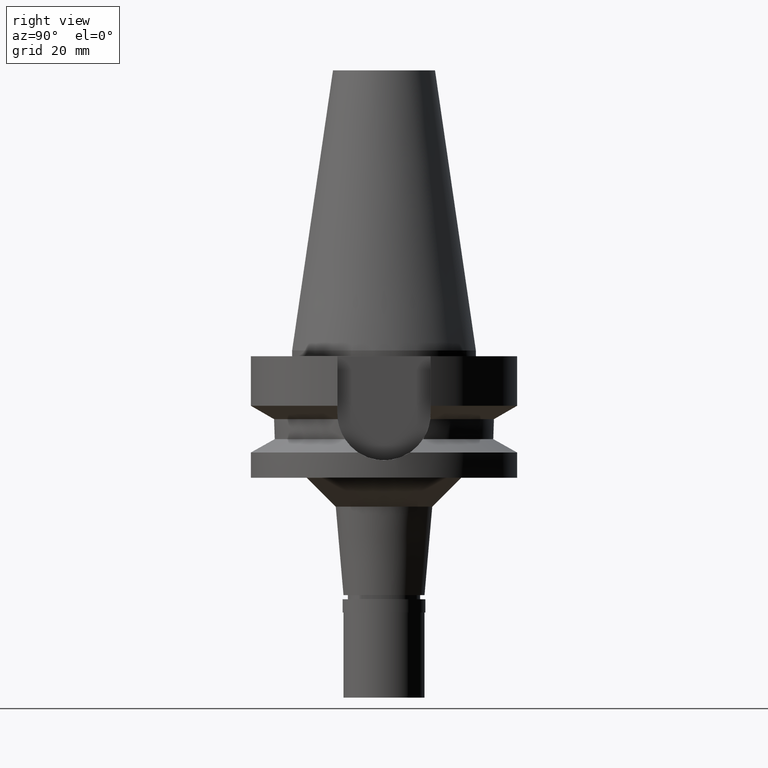
[diagram: clean part render]
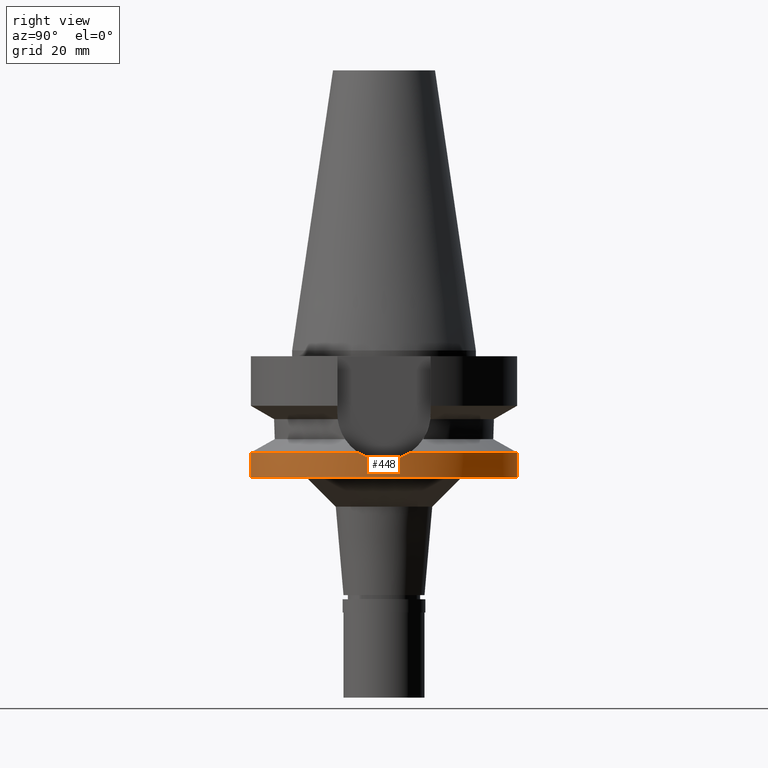
[diagram: same view with one face highlighted and labeled with its STEP entity id]
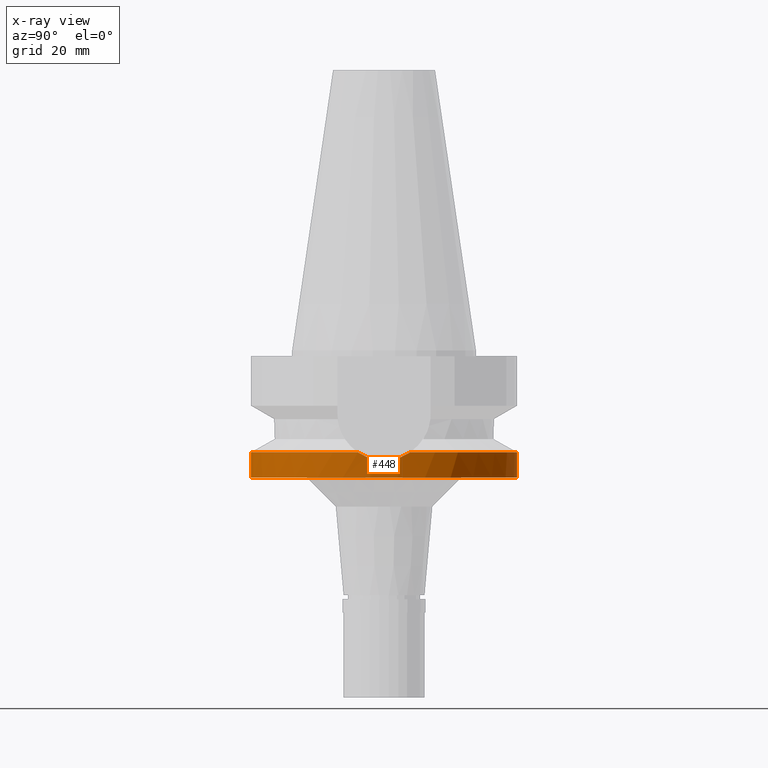
[diagram: x-ray of the same camera — body ghosted, the highlighted face saturated]
A machine part, right view. The second image highlights one B-rep face of the part: STEP entity #448.
The next image is the same camera in x-ray: the body ghosted, the highlighted face saturated — about 0% of this face is hidden behind the body in this view.
In plain terms, the highlighted cylindrical surface (partial cylindrical patch) has radius 23 mm, axis along (0, 0, -1).
Its self-contained STEP definition (entity closure, byte-faithful):
#115 = CARTESIAN_POINT ( 'NONE',  ( 0.0000000000000000000, 1.022848384030000006E-14, -17.63279163029000074 ) ) ;
#136 = DIRECTION ( 'NONE',  ( 0.0000000000000000000, 0.0000000000000000000, -1.000000000000000000 ) ) ;
#185 = CARTESIAN_POINT ( 'NONE',  ( 22.96071076208665573, 1.352603942152996508, -18.88798258446226797 ) ) ;
#204 = CARTESIAN_POINT ( 'NONE',  ( 22.88699429150508990, 2.275833945426211091, -18.67160857846149113 ) ) ;
#217 = B_SPLINE_CURVE_WITH_KNOTS ( 'NONE', 3,
 ( #2483, #609, #2469, #185, #389, #1312, #404, #2262, #2277, #204, #2050, #2958, #1345, #2921, #2413 ),
 .UNSPECIFIED., .F., .F.,
 ( 4, 2, 2, 1, 1, 1, 2, 2, 4 ),
 ( 0.0000000000000000000, 0.2499999999999888423, 0.3749999999999834022, 0.4374999999999807931, 0.4687499999999799050, 0.4843749999999794054, 0.4921874999999796274, 0.4999999999999799050, 1.000000000000000000 ),
 .UNSPECIFIED. ) ;
#238 = CARTESIAN_POINT ( 'NONE',  ( 22.55786346208000026, -4.488072640470000430, -17.63279163029000074 ) ) ;
#245 = LINE ( 'NONE', #716, #2690 ) ;
#262 = EDGE_CURVE ( 'NONE', #2947, #2054, #1557, .T. ) ;
#289 = VERTEX_POINT ( 'NONE', #978 ) ;
#291 = CARTESIAN_POINT ( 'NONE',  ( 22.88094006936556468, -2.335937757597561504, -18.65363902239958449 ) ) ;
#305 = CIRCLE ( 'NONE', #1955, 23.00000000000000000 ) ;
#346 = DIRECTION ( 'NONE',  ( 0.0000000000000000000, 0.0000000000000000000, -1.000000000000000000 ) ) ;
#379 = EDGE_CURVE ( 'NONE', #2899, #2512, #305, .T. ) ;
#389 = CARTESIAN_POINT ( 'NONE',  ( 22.94843267720125368, 1.547385716241232334, -18.85239223960121890 ) ) ;
#404 = CARTESIAN_POINT ( 'NONE',  ( 22.91436099164421591, 1.985013697799099974, -18.75255439337564312 ) ) ;
#428 = ORIENTED_EDGE ( 'NONE', *, *, #917, .F. ) ;
#448 = ADVANCED_FACE ( 'NONE', ( #1489 ), #767, .T. ) ;
#459 = CARTESIAN_POINT ( 'NONE',  ( 0.0000000000000000000, 23.00000000000000000, -17.63279163029000074 ) ) ;
#484 = CARTESIAN_POINT ( 'NONE',  ( 22.87778854850152044, -2.366576874364148875, -18.64427962363820157 ) ) ;
#603 = ORIENTED_EDGE ( 'NONE', *, *, #379, .T. ) ;
#609 = CARTESIAN_POINT ( 'NONE',  ( 23.00000063371999559, 0.3818371250552912710, -18.99999999999999645 ) ) ;
#617 = CARTESIAN_POINT ( 'NONE',  ( 0.0000000000000000000, -23.00000000000000000, -22.00000000000000000 ) ) ;
#658 = DIRECTION ( 'NONE',  ( 0.9807766722643714852, -0.1951335930638943839, 0.0000000000000000000 ) ) ;
#668 = LINE ( 'NONE', #882, #1219 ) ;
#716 = CARTESIAN_POINT ( 'NONE',  ( 0.0000000000000000000, -23.00000000000000000, -17.63279163029000074 ) ) ;
#748 = AXIS2_PLACEMENT_3D ( 'NONE', #2953, #2082, #658 ) ;
#767 = CYLINDRICAL_SURFACE ( 'NONE', #1816, 23.00000000000000000 ) ;
#882 = CARTESIAN_POINT ( 'NONE',  ( 0.0000000000000000000, 23.00000000000000000, -17.63279163029000074 ) ) ;
#917 = EDGE_CURVE ( 'NONE', #2054, #2512, #217, .T. ) ;
#922 = VERTEX_POINT ( 'NONE', #1944 ) ;
#927 = DIRECTION ( 'NONE',  ( 0.0000000000000000000, -2.603192430893000129E-14, -1.000000000000000000 ) ) ;
#970 = CARTESIAN_POINT ( 'NONE',  ( 22.84972471004990524, -2.625489052280167268, -18.56078264747250728 ) ) ;
#978 = CARTESIAN_POINT ( 'NONE',  ( 0.0000000000000000000, 23.00000000000000000, -22.00000000000000000 ) ) ;
#1035 = DIRECTION ( 'NONE',  ( 0.0000000000000000000, -1.000000000000000000, 0.0000000000000000000 ) ) ;
#1069 = ORIENTED_EDGE ( 'NONE', *, *, #1258, .T. ) ;
#1147 = CARTESIAN_POINT ( 'NONE',  ( 22.55786346208000026, -4.488072640470000430, -17.63279163029000074 ) ) ;
#1178 = CARTESIAN_POINT ( 'NONE',  ( 22.87999223066117693, -2.345192716997038573, -18.65082438113955376 ) ) ;
#1219 = VECTOR ( 'NONE', #927, 1000.000000000000000 ) ;
#1256 = DIRECTION ( 'NONE',  ( 0.0000000000000000000, 1.000000000000000000, 0.0000000000000000000 ) ) ;
#1258 = EDGE_CURVE ( 'NONE', #922, #2467, #245, .T. ) ;
#1264 = ORIENTED_EDGE ( 'NONE', *, *, #262, .F. ) ;
#1312 = CARTESIAN_POINT ( 'NONE',  ( 22.92633212440749446, 1.839198316140600475, -18.78771497119791078 ) ) ;
#1345 = CARTESIAN_POINT ( 'NONE',  ( 22.81283258117790780, 3.006578349707154985, -18.45139701124243103 ) ) ;
#1386 = CARTESIAN_POINT ( 'NONE',  ( 23.00000063371999914, 1.443017015379000089E-13, -19.00000207062000257 ) ) ;
#1432 = EDGE_CURVE ( 'NONE', #2899, #289, #668, .T. ) ;
#1489 = FACE_OUTER_BOUND ( 'NONE', #1683, .T. ) ;
#1501 = DIRECTION ( 'NONE',  ( 0.0000000000000000000, -1.000000000000000000, 0.0000000000000000000 ) ) ;
#1557 = B_SPLINE_CURVE_WITH_KNOTS ( 'NONE', 3,
 ( #238, #1678, #2354, #1661, #1847, #1642, #970, #2137, #2541, #484, #1178, #291, #2813, #2577, #1386 ),
 .UNSPECIFIED., .F., .F.,
 ( 4, 2, 2, 1, 1, 1, 2, 2, 4 ),
 ( 0.0000000000000000000, 0.2500000000000007772, 0.3750000000000010547, 0.4375000000000004996, 0.4687500000000000000, 0.4843750000000001110, 0.4921875000000005551, 0.5000000000000008882, 1.000000000000000000 ),
 .UNSPECIFIED. ) ;
#1642 = CARTESIAN_POINT ( 'NONE',  ( 22.83400210089637028, -2.757209696335472859, -18.51367956030372142 ) ) ;
#1661 = CARTESIAN_POINT ( 'NONE',  ( 22.77613773201835912, -3.202598962406387084, -18.33823203040621053 ) ) ;
#1678 = CARTESIAN_POINT ( 'NONE',  ( 22.63131207853134441, -4.118906632237657739, -17.88071853763582908 ) ) ;
#1683 = EDGE_LOOP ( 'NONE', ( #2346, #1069, #2978, #2559, #603, #428, #1264 ) ) ;
#1816 = AXIS2_PLACEMENT_3D ( 'NONE', #2643, #346, #1035 ) ;
#1847 = CARTESIAN_POINT ( 'NONE',  ( 22.80073832535611089, -3.022754175988392689, -18.41332850634591622 ) ) ;
#1944 = CARTESIAN_POINT ( 'NONE',  ( 0.0000000000000000000, -23.00000000000000000, -17.63279163029000074 ) ) ;
#1954 = CARTESIAN_POINT ( 'NONE',  ( 22.55786346208000026, 4.488072640470000430, -17.63279163029000074 ) ) ;
#1955 = AXIS2_PLACEMENT_3D ( 'NONE', #115, #136, #1256 ) ;
#2050 = CARTESIAN_POINT ( 'NONE',  ( 22.88457704354327049, 2.300027115002791334, -18.66443675561451698 ) ) ;
#2054 = VERTEX_POINT ( 'NONE', #2792 ) ;
#2061 = CIRCLE ( 'NONE', #748, 23.00000000000001066 ) ;
#2077 = CIRCLE ( 'NONE', #2875, 23.00000000000000000 ) ;
#2082 = DIRECTION ( 'NONE',  ( 0.0000000000000000000, 0.0000000000000000000, -1.000000000000000000 ) ) ;
#2137 = CARTESIAN_POINT ( 'NONE',  ( 22.86647651648333479, -2.473921394389271278, -18.61066494075172528 ) ) ;
#2225 = EDGE_CURVE ( 'NONE', #2467, #289, #2077, .T. ) ;
#2262 = CARTESIAN_POINT ( 'NONE',  ( 22.89878317144584585, 2.154771474957501542, -18.70653894765700542 ) ) ;
#2277 = CARTESIAN_POINT ( 'NONE',  ( 22.89059138668635640, 2.239534525010190347, -18.68227636467218034 ) ) ;
#2346 = ORIENTED_EDGE ( 'NONE', *, *, #2793, .T. ) ;
#2354 = CARTESIAN_POINT ( 'NONE',  ( 22.69506172307234237, -3.747764842162717880, -18.08562956468145444 ) ) ;
#2413 = CARTESIAN_POINT ( 'NONE',  ( 22.55786346208000026, 4.488072640470000430, -17.63279163029000074 ) ) ;
#2467 = VERTEX_POINT ( 'NONE', #617 ) ;
#2469 = CARTESIAN_POINT ( 'NONE',  ( 22.99017816581165974, 0.7692921462012740630, -18.97278688087933674 ) ) ;
#2483 = CARTESIAN_POINT ( 'NONE',  ( 23.00000063371999914, 1.443017015379000089E-13, -19.00000207062000257 ) ) ;
#2512 = VERTEX_POINT ( 'NONE', #1954 ) ;
#2541 = CARTESIAN_POINT ( 'NONE',  ( 22.87445461030527483, -2.398694468089933807, -18.63437673731826294 ) ) ;
#2559 = ORIENTED_EDGE ( 'NONE', *, *, #1432, .F. ) ;
#2577 = CARTESIAN_POINT ( 'NONE',  ( 23.00000063371999559, -0.7635895629968812992, -19.00000000000000355 ) ) ;
#2643 = CARTESIAN_POINT ( 'NONE',  ( 0.0000000000000000000, 1.881302412850000052E-14, 53.62000000000000455 ) ) ;
#2659 = CARTESIAN_POINT ( 'NONE',  ( 0.0000000000000000000, 1.881302412850000052E-14, -22.00000000000000000 ) ) ;
#2690 = VECTOR ( 'NONE', #2967, 1000.000000000000000 ) ;
#2792 = CARTESIAN_POINT ( 'NONE',  ( 23.00000063371999914, 1.443017015379000089E-13, -19.00000207062000257 ) ) ;
#2793 = EDGE_CURVE ( 'NONE', #2947, #922, #2061, .T. ) ;
#2813 = CARTESIAN_POINT ( 'NONE',  ( 22.96072292176801355, -1.550239297752303624, -18.89053771802164761 ) ) ;
#2869 = DIRECTION ( 'NONE',  ( 0.0000000000000000000, 0.0000000000000000000, 1.000000000000000000 ) ) ;
#2875 = AXIS2_PLACEMENT_3D ( 'NONE', #2659, #2869, #1501 ) ;
#2899 = VERTEX_POINT ( 'NONE', #459 ) ;
#2921 = CARTESIAN_POINT ( 'NONE',  ( 22.70474339559790167, 3.749827573804493497, -18.12858705067106158 ) ) ;
#2947 = VERTEX_POINT ( 'NONE', #1147 ) ;
#2953 = CARTESIAN_POINT ( 'NONE',  ( 0.0000000000000000000, 1.022848384030000006E-14, -17.63279163029000074 ) ) ;
#2958 = CARTESIAN_POINT ( 'NONE',  ( 22.88321380690815587, 2.313548464805313731, -18.66039023119002849 ) ) ;
#2967 = DIRECTION ( 'NONE',  ( 0.0000000000000000000, 2.277793377031000010E-14, -1.000000000000000000 ) ) ;
#2978 = ORIENTED_EDGE ( 'NONE', *, *, #2225, .T. ) ;